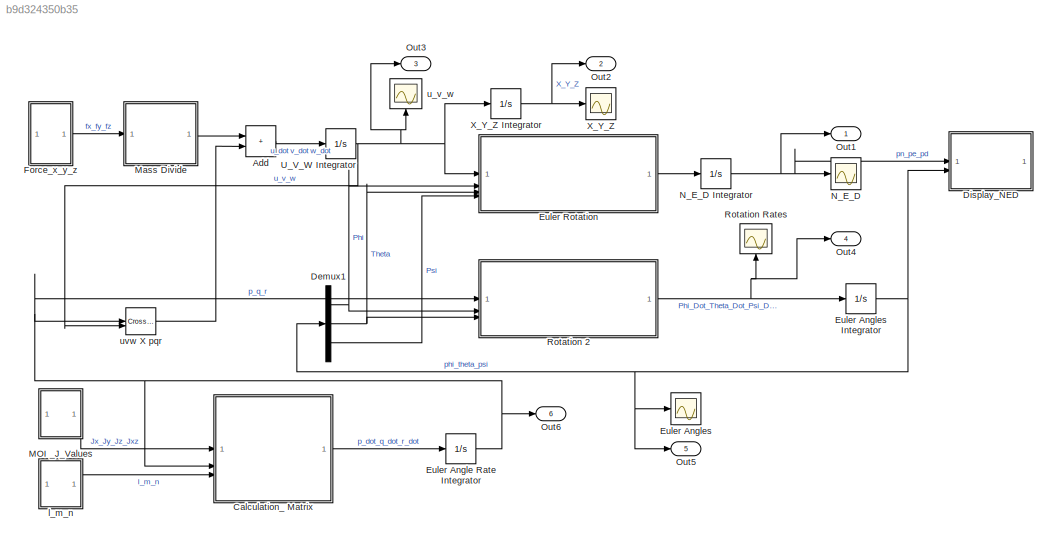
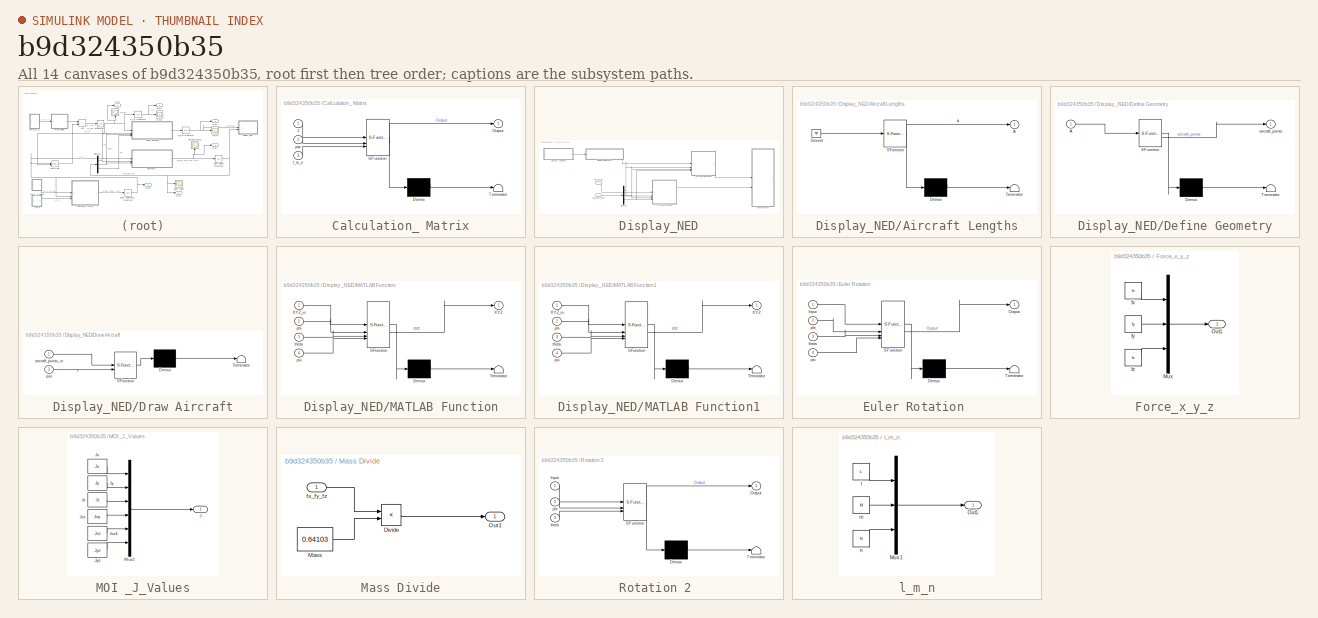
[diagram: thumbnail index - all 14 canvases of the model, root first then tree order]
MODEL slx_b9d324350b35
KIND model
CONFIG AbsTol = auto
CONFIG EnableMultiTasking = off
CONFIG FixedStep = auto
CONFIG MaxStep = auto
CONFIG MinStep = auto
CONFIG RelTol = 1e-3
CONFIG SampleTimeConstraint = Unconstrained
CONFIG SolverName = VariableStepAuto
CONFIG StartTime = 0.0
CONFIG StopTime = 10.0
WORKSPACE source: mxarray member
WORKSPACE mass = 1.56
BLOCK [Sum] Add
  IconShape = rectangular
BLOCK [SubSystem] Calculation_ Matrix
  ErrorFcn = Stateflow.Translate.translate
  LibrarySourceBlock = simulink/User-Defined\nFunctions/MATLAB Function
  PermitHierarchicalResolution = ExplicitOnly
  SFBlockType = MATLAB Function
  TreatAsAtomicUnit = on
BLOCK [Demux] Calculation_ Matrix/ Demux 
  Outputs = 1
BLOCK [S-Function] Calculation_ Matrix/ SFunction 
  EnableBusSupport = on
  FunctionName = sf_sfun
  PortCounts = [3 2]
  SFcnIsStateOwnerBlock = off
  SFunctionDeploymentMode = off
  Tag = Stateflow S-Function 3
BLOCK [Terminator] Calculation_ Matrix/ Terminator 
BLOCK [Inport] Calculation_ Matrix/J
BLOCK [Outport] Calculation_ Matrix/Output
BLOCK [Inport] Calculation_ Matrix/l_m_n
  Port = 3
BLOCK [Inport] Calculation_ Matrix/pqr
  Port = 2
BLOCK [Demux] Demux1
  Outputs = 3
BLOCK [SubSystem] Display_NED
BLOCK [SubSystem] Display_NED/Aircraft Lengths
  ErrorFcn = Stateflow.Translate.translate
  LibrarySourceBlock = simulink/User-Defined\nFunctions/MATLAB Function
  PermitHierarchicalResolution = ExplicitOnly
  SFBlockType = MATLAB Function
  TreatAsAtomicUnit = on
BLOCK [Demux] Display_NED/Aircraft Lengths/ Demux 
  Outputs = 1
BLOCK [Ground] Display_NED/Aircraft Lengths/ Ground 
BLOCK [S-Function] Display_NED/Aircraft Lengths/ SFunction 
  EnableBusSupport = on
  FunctionName = sf_sfun
  PortCounts = [1 2]
  SFcnIsStateOwnerBlock = off
  SFunctionDeploymentMode = off
  Tag = Stateflow S-Function 6
BLOCK [Terminator] Display_NED/Aircraft Lengths/ Terminator 
BLOCK [Outport] Display_NED/Aircraft Lengths/A
BLOCK [SubSystem] Display_NED/Define Geometry
  ErrorFcn = Stateflow.Translate.translate
  LibrarySourceBlock = simulink/User-Defined\nFunctions/MATLAB Function
  PermitHierarchicalResolution = ExplicitOnly
  SFBlockType = MATLAB Function
  TreatAsAtomicUnit = on
BLOCK [Demux] Display_NED/Define Geometry/ Demux 
  Outputs = 1
BLOCK [S-Function] Display_NED/Define Geometry/ SFunction 
  EnableBusSupport = on
  FunctionName = sf_sfun
  PortCounts = [1 2]
  SFcnIsStateOwnerBlock = off
  SFunctionDeploymentMode = off
  Tag = Stateflow S-Function 4
BLOCK [Terminator] Display_NED/Define Geometry/ Terminator 
BLOCK [Inport] Display_NED/Define Geometry/A
BLOCK [Outport] Display_NED/Define Geometry/aircraft_points
BLOCK [Demux] Display_NED/Demux
  Outputs = 3
BLOCK [SubSystem] Display_NED/Draw Aircraft
  ErrorFcn = Stateflow.Translate.translate
  LibrarySourceBlock = simulink/User-Defined\nFunctions/MATLAB Function
  PermitHierarchicalResolution = ExplicitOnly
  SFBlockType = MATLAB Function
  TreatAsAtomicUnit = on
BLOCK [Demux] Display_NED/Draw Aircraft/ Demux 
  Outputs = 1
BLOCK [S-Function] Display_NED/Draw Aircraft/ SFunction 
  EnableBusSupport = on
  FunctionName = sf_sfun
  PortCounts = [2 1]
  SFcnIsStateOwnerBlock = off
  SFunctionDeploymentMode = off
  Tag = Stateflow S-Function 5
BLOCK [Terminator] Display_NED/Draw Aircraft/ Terminator 
BLOCK [Inport] Display_NED/Draw Aircraft/aircraft_points_in
BLOCK [Inport] Display_NED/Draw Aircraft/pos
  Port = 2
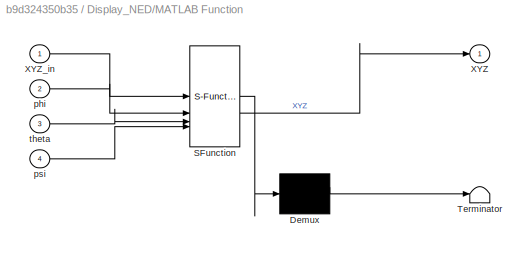
BLOCK [SubSystem] Display_NED/MATLAB Function
  ErrorFcn = Stateflow.Translate.translate
  LibrarySourceBlock = simulink/User-Defined\nFunctions/MATLAB Function
  PermitHierarchicalResolution = ExplicitOnly
  SFBlockType = MATLAB Function
  TreatAsAtomicUnit = on
BLOCK [Demux] Display_NED/MATLAB Function/ Demux 
  Outputs = 1
BLOCK [S-Function] Display_NED/MATLAB Function/ SFunction 
  EnableBusSupport = on
  FunctionName = sf_sfun
  PortCounts = [4 2]
  SFcnIsStateOwnerBlock = off
  SFunctionDeploymentMode = off
  Tag = Stateflow S-Function 7
BLOCK [Terminator] Display_NED/MATLAB Function/ Terminator 
BLOCK [Outport] Display_NED/MATLAB Function/XYZ
BLOCK [Inport] Display_NED/MATLAB Function/XYZ_in
BLOCK [Inport] Display_NED/MATLAB Function/phi
  Port = 2
BLOCK [Inport] Display_NED/MATLAB Function/psi
  Port = 4
BLOCK [Inport] Display_NED/MATLAB Function/theta
  Port = 3
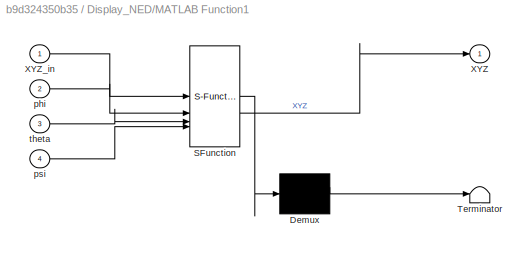
BLOCK [SubSystem] Display_NED/MATLAB Function1
  ErrorFcn = Stateflow.Translate.translate
  LibrarySourceBlock = simulink/User-Defined\nFunctions/MATLAB Function
  PermitHierarchicalResolution = ExplicitOnly
  SFBlockType = MATLAB Function
  TreatAsAtomicUnit = on
BLOCK [Demux] Display_NED/MATLAB Function1/ Demux 
  Outputs = 1
BLOCK [S-Function] Display_NED/MATLAB Function1/ SFunction 
  EnableBusSupport = on
  FunctionName = sf_sfun
  PortCounts = [4 2]
  SFcnIsStateOwnerBlock = off
  SFunctionDeploymentMode = off
  Tag = Stateflow S-Function 8
BLOCK [Terminator] Display_NED/MATLAB Function1/ Terminator 
BLOCK [Outport] Display_NED/MATLAB Function1/XYZ
BLOCK [Inport] Display_NED/MATLAB Function1/XYZ_in
BLOCK [Inport] Display_NED/MATLAB Function1/phi
  Port = 2
BLOCK [Inport] Display_NED/MATLAB Function1/psi
  Port = 4
BLOCK [Inport] Display_NED/MATLAB Function1/theta
  Port = 3
BLOCK [Inport] Display_NED/phi_theta_psi
  Port = 2
BLOCK [Inport] Display_NED/pn_pe_pd
BLOCK [Integrator] Euler Angle Rate Integrator
  InitialCondition = p_q_r_init
BLOCK [Scope] Euler Angles
  Floating = off
  NameLocation = top
  NumInputPorts = 1
  ScopeSpecificationString = Simulink.scopes.TimeScopeBlockCfg('CurrentConfiguration', extmgr.ConfigurationSet(extmgr.Configuration('Core','General UI',true),extmgr.Configuration('Core','Source UI',true),extmgr.Configuration('Sources','WiredSimulink',true,'DataLoggingVariableName','ScopeData3'),extmgr.Configuration('Visuals','Time Domain',true,'SerializedDisplays',{struct('MinYLimReal','-33.38586','MaxYLimReal','13.64718','YL...<+1467ch>
BLOCK [Integrator] Euler Angles Integrator
  InitialCondition = phi_theta_psi_init
BLOCK [SubSystem] Euler Rotation 
  ErrorFcn = Stateflow.Translate.translate
  LibrarySourceBlock = simulink/User-Defined\nFunctions/MATLAB Function
  PermitHierarchicalResolution = ExplicitOnly
  SFBlockType = MATLAB Function
  TreatAsAtomicUnit = on
BLOCK [Demux] Euler Rotation / Demux 
  Outputs = 1
BLOCK [S-Function] Euler Rotation / SFunction 
  EnableBusSupport = on
  FunctionName = sf_sfun
  PortCounts = [4 2]
  SFcnIsStateOwnerBlock = off
  SFunctionDeploymentMode = off
  Tag = Stateflow S-Function 2
BLOCK [Terminator] Euler Rotation / Terminator 
BLOCK [Inport] Euler Rotation /Input
BLOCK [Outport] Euler Rotation /Output
BLOCK [Inport] Euler Rotation /phi
  Port = 2
BLOCK [Inport] Euler Rotation /psi
  Port = 4
BLOCK [Inport] Euler Rotation /theta
  Port = 3
BLOCK [SubSystem] Force_x_y_z
BLOCK [Mux] Force_x_y_z/Mux
  DisplayOption = bar
  Inputs = 3
BLOCK [Outport] Force_x_y_z/Out1
BLOCK [Constant] Force_x_y_z/fx
  Value = fx
BLOCK [Constant] Force_x_y_z/fy
  Value = fy
BLOCK [Constant] Force_x_y_z/fz
  Value = fz
BLOCK [SubSystem] MOI _J_Values
BLOCK [Outport] MOI _J_Values/J
BLOCK [Constant] MOI _J_Values/Jx
  Value = Jx
BLOCK [Constant] MOI _J_Values/Jxz
  Value = Jxy
BLOCK [Constant] MOI _J_Values/Jxz1
  Value = Jxz
BLOCK [Constant] MOI _J_Values/Jy
  Value = Jy
BLOCK [Constant] MOI _J_Values/Jyz
  Value = Jyz
BLOCK [Constant] MOI _J_Values/Jz
  Value = Jz
BLOCK [Mux] MOI _J_Values/Mux2
  DisplayOption = bar
  Inputs = 6
BLOCK [SubSystem] Mass Divide
BLOCK [Product] Mass Divide/Divide
  Inputs = */
  RndMeth = Zero
  SaturateOnIntegerOverflow = on
BLOCK [Constant] Mass Divide/Mass
  Value = 0.64103
BLOCK [Outport] Mass Divide/Out1
BLOCK [Inport] Mass Divide/fx_fy_fz
BLOCK [Scope] N_E_D
  Floating = off
  NumInputPorts = 1
  ScopeSpecificationString = Simulink.scopes.TimeScopeBlockCfg('CurrentConfiguration', extmgr.ConfigurationSet(extmgr.Configuration('Core','General UI',true),extmgr.Configuration('Core','Source UI',true),extmgr.Configuration('Sources','WiredSimulink',true),extmgr.Configuration('Visuals','Time Domain',true,'SerializedDisplays',{struct('MinYLimReal','-27.76139','MaxYLimReal','20.89584','YLabelReal','','MinYLimMag','0.00000','Ma...<+1465ch>
BLOCK [Integrator] N_E_D Integrator
  InitialCondition = n_e_d_init
BLOCK [Outport] Out1
  NameLocation = top
BLOCK [Outport] Out2
  Port = 2
BLOCK [Outport] Out3
  Port = 3
BLOCK [Outport] Out4
  Port = 4
BLOCK [Outport] Out5
  Port = 5
BLOCK [Outport] Out6
  Port = 6
BLOCK [SubSystem] Rotation 2 
  ErrorFcn = Stateflow.Translate.translate
  LibrarySourceBlock = simulink/User-Defined\nFunctions/MATLAB Function
  PermitHierarchicalResolution = ExplicitOnly
  SFBlockType = MATLAB Function
  TreatAsAtomicUnit = on
BLOCK [Demux] Rotation 2 / Demux 
  Outputs = 1
BLOCK [S-Function] Rotation 2 / SFunction 
  EnableBusSupport = on
  FunctionName = sf_sfun
  PortCounts = [3 2]
  SFcnIsStateOwnerBlock = off
  SFunctionDeploymentMode = off
  Tag = Stateflow S-Function 1
BLOCK [Terminator] Rotation 2 / Terminator 
BLOCK [Inport] Rotation 2 /Input
BLOCK [Outport] Rotation 2 /Output
BLOCK [Inport] Rotation 2 /phi
  Port = 2
BLOCK [Inport] Rotation 2 /theta
  Port = 3
BLOCK [Scope] Rotation Rates
  Floating = off
  NameLocation = left
  NumInputPorts = 1
  ScopeSpecificationString = Simulink.scopes.TimeScopeBlockCfg('CurrentConfiguration', extmgr.ConfigurationSet(extmgr.Configuration('Core','General UI',true),extmgr.Configuration('Core','Source UI',true),extmgr.Configuration('Sources','WiredSimulink',true,'DataLoggingVariableName','ScopeData2'),extmgr.Configuration('Visuals','Time Domain',true,'SerializedDisplays',{struct('MinYLimReal','-13.58313','MaxYLimReal','12.89961','YL...<+1491ch>
BLOCK [Integrator] U_V_W Integrator
  InitialCondition = u_v_w_init
  NameLocation = top
BLOCK [Scope] X_Y_Z
  Floating = off
  NumInputPorts = 1
  ScopeSpecificationString = Simulink.scopes.TimeScopeBlockCfg('CurrentConfiguration', extmgr.ConfigurationSet(extmgr.Configuration('Core','General UI',true),extmgr.Configuration('Core','Source UI',true),extmgr.Configuration('Sources','WiredSimulink',true,'DataLoggingVariableName','ScopeData1'),extmgr.Configuration('Visuals','Time Domain',true,'SerializedDisplays',{struct('MinYLimReal','-11.50468','MaxYLimReal','8.56867','YLa...<+1480ch>
BLOCK [Integrator] X_Y_Z Integrator
  InitialCondition = x_y_z_init
  NameLocation = top
BLOCK [SubSystem] l_m_n
BLOCK [Mux] l_m_n/Mux1
  DisplayOption = bar
  Inputs = 3
BLOCK [Outport] l_m_n/Out1
BLOCK [Constant] l_m_n/l
  Value = L
BLOCK [Constant] l_m_n/m
  Value = M
BLOCK [Constant] l_m_n/n
  Value = N
BLOCK [Scope] u_v_w
  Floating = off
  NameLocation = right
  NumInputPorts = 1
  ScopeSpecificationString = Simulink.scopes.TimeScopeBlockCfg('CurrentConfiguration', extmgr.ConfigurationSet(extmgr.Configuration('Core','General UI',true),extmgr.Configuration('Core','Source UI',true),extmgr.Configuration('Sources','WiredSimulink',true,'DataLoggingVariableName','ScopeData1'),extmgr.Configuration('Visuals','Time Domain',true,'SerializedDisplays',{struct('MinYLimReal','-27.141','MaxYLimReal','23.43135','YLab...<+1475ch>
BLOCK [Reference] uvw X pqr  REF=matrix_library/Cross Product
  LibrarySourceBlock = simulink/Matrix\nOperations/Cross Product
  SourceBlock = matrix_library/Cross Product
  SourceType = CrossProduct
LINE Add:1 -> U_V_W Integrator:1
LINE Calculation_ Matrix:1 -> Euler Angle Rate Integrator:1
NET Demux1:1 -> Euler Rotation :2, Rotation 2 :2
NET Demux1:2 -> Euler Rotation :3, Rotation 2 :3
LINE Demux1:3 -> Euler Rotation :4
LINE Display_NED/Aircraft Lengths:1 -> Display_NED/Define Geometry:1
LINE Display_NED/Define Geometry:1 -> Display_NED/MATLAB Function1:1
NET Display_NED/Demux:1 -> Display_NED/MATLAB Function1:2, Display_NED/MATLAB Function:2
NET Display_NED/Demux:2 -> Display_NED/MATLAB Function1:3, Display_NED/MATLAB Function:3
NET Display_NED/Demux:3 -> Display_NED/MATLAB Function1:4, Display_NED/MATLAB Function:4
LINE Display_NED/MATLAB Function1:1 -> Display_NED/Draw Aircraft:1
LINE Display_NED/MATLAB Function:1 -> Display_NED/Draw Aircraft:2
LINE Display_NED/phi_theta_psi:1 -> Display_NED/Demux:1
LINE Display_NED/pn_pe_pd:1 -> Display_NED/MATLAB Function:1
NET Euler Angle Rate Integrator:1 -> Calculation_ Matrix:2, Out6:1, Rotation 2 :1, uvw X pqr:1
NET Euler Angles Integrator:1 -> Demux1:1, Display_NED:2, Euler Angles:1, Out5:1
LINE Euler Rotation :1 -> N_E_D Integrator:1
LINE Force_x_y_z/Mux:1 -> Force_x_y_z/Out1:1
LINE Force_x_y_z/fx:1 -> Force_x_y_z/Mux:1
LINE Force_x_y_z/fy:1 -> Force_x_y_z/Mux:2
LINE Force_x_y_z/fz:1 -> Force_x_y_z/Mux:3
LINE Force_x_y_z:1 -> Mass Divide:1
LINE MOI _J_Values/Jx:1 -> MOI _J_Values/Mux2:1
LINE MOI _J_Values/Jxz1:1 -> MOI _J_Values/Mux2:5
LINE MOI _J_Values/Jxz:1 -> MOI _J_Values/Mux2:4
LINE MOI _J_Values/Jy:1 -> MOI _J_Values/Mux2:2
LINE MOI _J_Values/Jyz:1 -> MOI _J_Values/Mux2:6
LINE MOI _J_Values/Jz:1 -> MOI _J_Values/Mux2:3
LINE MOI _J_Values/Mux2:1 -> MOI _J_Values/J:1
LINE MOI _J_Values:1 -> Calculation_ Matrix:1
LINE Mass Divide/Divide:1 -> Mass Divide/Out1:1
LINE Mass Divide/Mass:1 -> Mass Divide/Divide:2
LINE Mass Divide/fx_fy_fz:1 -> Mass Divide/Divide:1
LINE Mass Divide:1 -> Add:1
NET N_E_D Integrator:1 -> Display_NED:1, N_E_D:1, Out1:1
NET Rotation 2 :1 -> Euler Angles Integrator:1, Out4:1, Rotation Rates:1
NET U_V_W Integrator:1 -> Euler Rotation :1, Out3:1, X_Y_Z Integrator:1, u_v_w:1, uvw X pqr:2
NET X_Y_Z Integrator:1 -> Out2:1, X_Y_Z:1
LINE l_m_n/Mux1:1 -> l_m_n/Out1:1
LINE l_m_n/l:1 -> l_m_n/Mux1:1
LINE l_m_n/m:1 -> l_m_n/Mux1:2
LINE l_m_n/n:1 -> l_m_n/Mux1:3
LINE l_m_n:1 -> Calculation_ Matrix:3
LINE uvw X pqr:1 -> Add:2
note: NET lines group one-source signal fan-out (src -> all destinations, sorted); 1:1 wires keep LINE
CHART Rotation 2  states=1 transitions=1
  STATE_LABEL 'eML_blk_kernel()'
  STATE_LABEL 'SCRIPT:\nfunction Output = Rotation_Matrix_2(Input, phi, theta)\n\nR = [1 sind(phi)*tand(theta) cos(phi)*tand(theta);\n     0 cosd(phi) -sind(phi);\n     0 -sind(phi)*secd(theta) cosd(phi)*secd(theta);];\nOutput = R*Input;\n% set_angles(phi,theta,psi);\nend'
CHART Euler Rotation  states=1 transitions=1
  STATE_LABEL 'eML_blk_kernel()'
  STATE_LABEL 'SCRIPT:\nfunction Output = Rotation_Matrix_1(Input, phi, theta, psi)\nR_roll = [1 0 0;\n          0 cosd(phi) sind(phi);\n          0 -sind(phi) cosd(phi);];\n\nR_pitch = [cosd(theta) 0 -sind(theta);\n           0 1 0;\n           sind(theta) 0 cosd(theta);];\n\nR_yaw = [cosd(psi) sind(psi) 0;\n         -sind(psi) cosd(psi) 0;\n         0 0 1;];\n\nR = R_roll*R_pitch*R_yaw;\nOutput = (R*Input);\n% set_angles(phi,...<+15ch>'
CHART Calculation_ Matrix states=1 transitions=1
  STATE_LABEL 'eML_blk_kernel()'
  STATE_LABEL 'SCRIPT:\nfunction Output =  Rotation_Acc_Calc(J, pqr, l_m_n)\n\nR1 = [0 pqr(3) -pqr(2);\n      -pqr(3) 0 pqr(1);\n      pqr(2) -pqr(1) 0;];\nJ1 = [J(1) -J(4) -J(5);\n      -J(4) J(2) -J(6);\n      -J(5) -J(6) J(3);];\npqr1 = [pqr(1);\n        pqr(2);\n        pqr(3);];\nlmn1 = [l_m_n(1);\n        l_m_n(2);\n        l_m_n(3);];\n\n% if cond(J1) ~= inf\n%     J_inv = inv(J1);\n% elseif cond(J1) == inf\n%     error("MO...<+188ch>'
CHART Display_NED/Define Geometry states=1 transitions=1
  STATE_LABEL 'eML_blk_kernel()'
  STATE_LABEL 'SCRIPT:\nfunction aircraft_points= Def_Geom(A)\n%%\n% A(1), A(2), A(3), A(4), A(5), A(6), A(7), A(8), A(9), A(10), A(11)\n% Matrix A is defined as the order of Aircraft part lengths as given above\n% in order of appearnace. A is 11 X 1 Matrix\n%%\n% Geometry Variables\naircraft_points = [\n            A(9), 0, 0; % Point 1\n            A(10), A(7)/2, -A(8)/2; % Point 2\n            A(10), -A(7)/2, -A(8)/2; %...<+569ch>'
CHART Display_NED/Draw Aircraft states=1 transitions=1
  STATE_LABEL 'eML_blk_kernel()'
  STATE_LABEL 'SCRIPT:\nfunction Draw_Aircraft(aircraft_points_in, pos)\naircraft_faces3 = [\n            1 2 3; % Nose\n            1 2 5; % Nose\n            1 4 5; % Nose\n            1 3 4; % Nose\n            2 3 6; % Fuselage\n            3 4 6; % Fuselage\n            4 5 6; % Fuselage\n            2 5 6; % Fuselage\n            15 16 6; % Vertical Tail\n            ];\naircraft_faces4 = [\n            7 8 9 10; % Wing...<+538ch>'
CHART Display_NED/Aircraft Lengths states=1 transitions=1
  STATE_LABEL 'eML_blk_kernel()'
  STATE_LABEL 'SCRIPT:\nfunction A = Aircraft_lengths()\naircraft_lengths = [2 20 1 6 1.5 1.5 1.5 1.5 4 2 15];\nA = aircraft_lengths;\nend'
CHART Display_NED/MATLAB Function states=1 transitions=1
  STATE_LABEL 'eML_blk_kernel()'
  STATE_LABEL 'SCRIPT:\nfunction XYZ = rotate(XYZ_in, phi, theta, psi)\nR_roll = [1 0 0;\n          0 cosd(phi) sind(phi);\n          0 -sind(phi) cosd(phi);];\n\nR_pitch = [cosd(theta) 0 -sind(theta);\n           0 1 0;\n           sind(theta) 0 cosd(theta);];\n\nR_yaw = [cosd(psi) sind(psi) 0;\n         -sind(psi) cosd(psi) 0;\n         0 0 1;];\n\nR = R_roll*R_pitch*R_yaw;\nXYZ = (R*XYZ_in);'
CHART Display_NED/MATLAB Function1 states=1 transitions=1
  STATE_LABEL 'eML_blk_kernel()'
  STATE_LABEL "SCRIPT:\nfunction XYZ = rotate(XYZ_in , phi, theta, psi)\nR_roll = [1 0 0;\n          0 cosd(phi) sind(phi);\n          0 -sind(phi) cosd(phi);];\n\nR_pitch = [cosd(theta) 0 -sind(theta);\n           0 1 0;\n           sind(theta) 0 cosd(theta);];\n\nR_yaw = [cosd(psi) sind(psi) 0;\n         -sind(psi) cosd(psi) 0;\n         0 0 1;];\n\nR = R_roll*R_pitch*R_yaw;\nXYZ = (R*XYZ_in');"
CHART  states=0 transitions=0
CHART  states=0 transitions=0
CHART  states=0 transitions=0
CHART  states=0 transitions=0
CHART  states=0 transitions=0
CHART  states=0 transitions=0
CHART  states=0 transitions=0
CHART  states=0 transitions=0
